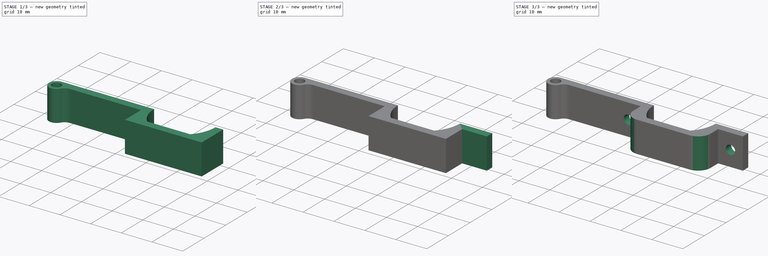
[diagram: build sequence overview — one tinted view per stage of 3, left to right]
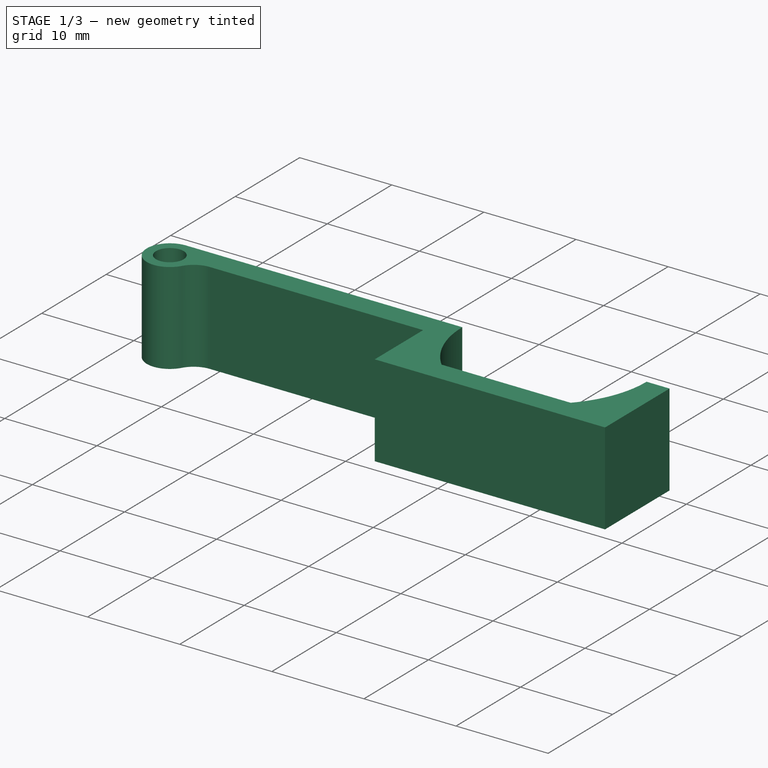
[diagram: stage 1 of 3 — iso view after this stage's code; geometry added in this stage tinted green]
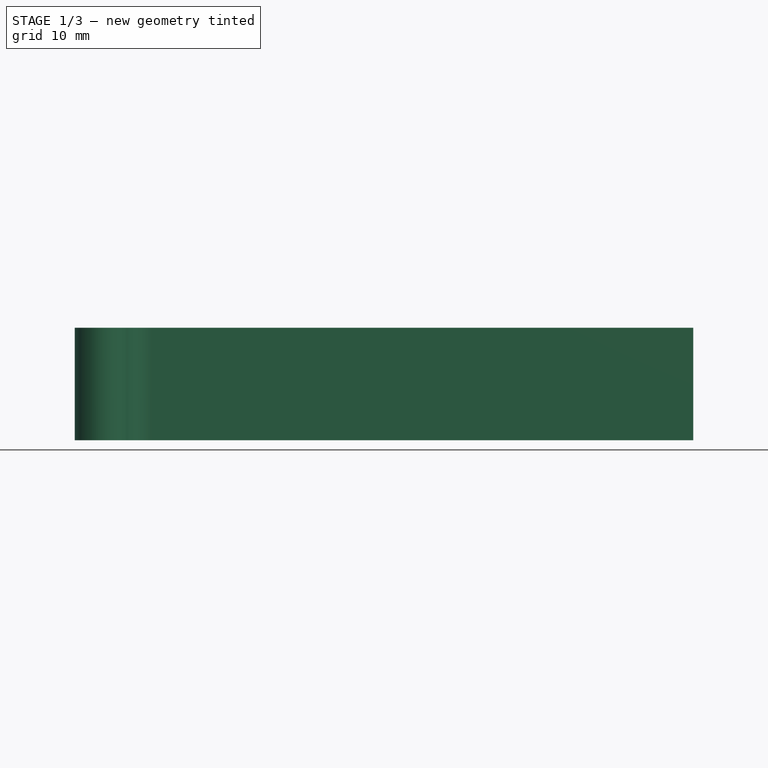
[diagram: stage 1 of 3 — front view after this stage's code; geometry added in this stage tinted green]
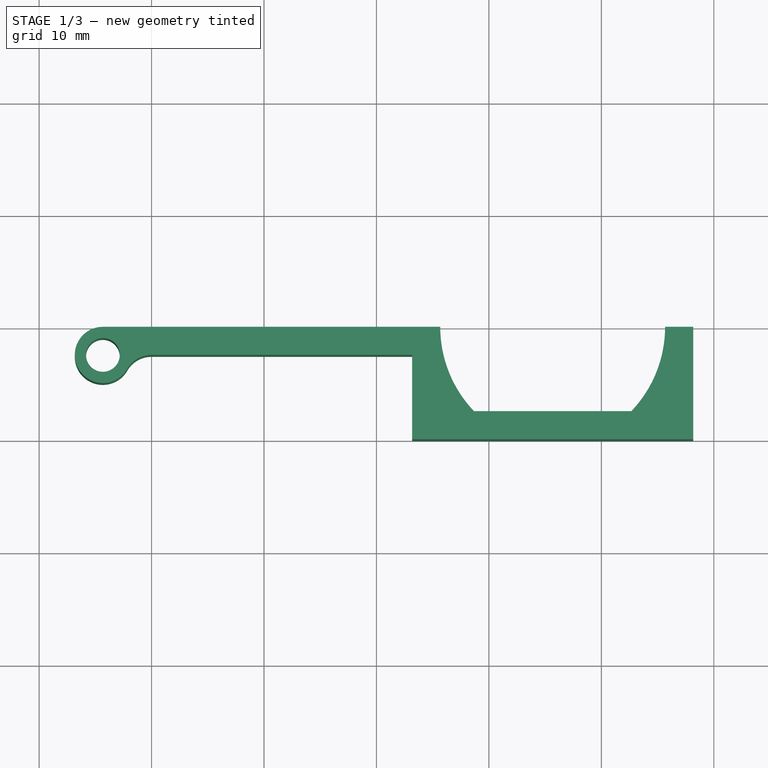
[diagram: stage 1 of 3 — top view after this stage's code; geometry added in this stage tinted green]
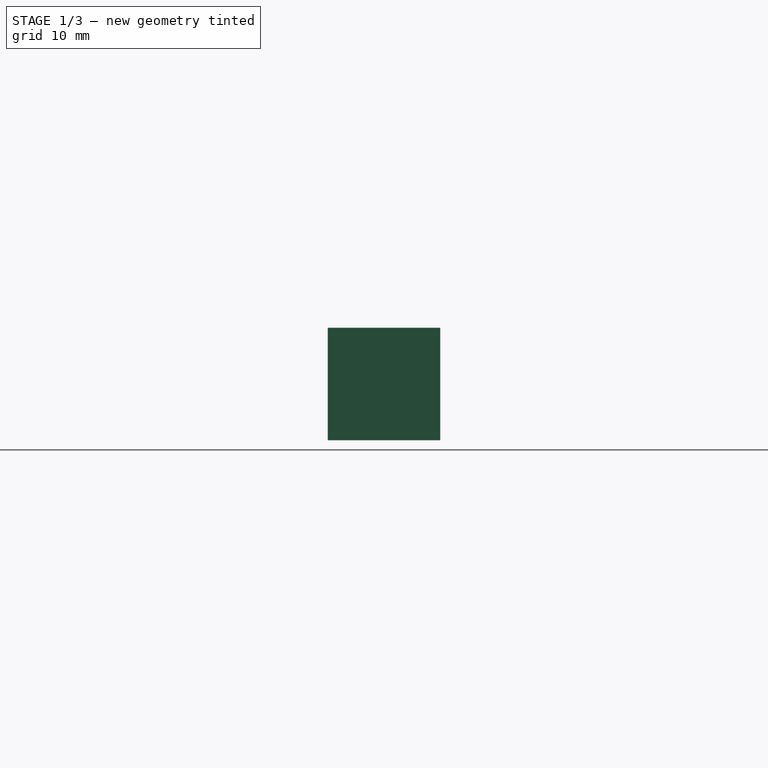
[diagram: stage 1 of 3 — right view after this stage's code; geometry added in this stage tinted green]
FCSTD DOCUMENT  (FreeCAD 1.0R39109 (Git))
Label: Motor-Befestigung-Schraubebefestigung-DerGerät
License: All rights reserved
LicenseURL: https://en.wikipedia.org/wiki/All_rights_reserved
objects: Sketcher::SketchObject×4, PartDesign::Pad×2, PartDesign::Pocket×2, PartDesign::Fillet×1, PartDesign::Body×1
note: 24 computed .brp shape members not serialized (recipe doc carries the construction recipe); baked Part::Feature solids carry a one-line shape summary decoded from their .brp

FEATURE [Sketcher::SketchObject] Sketch
  ArcFitTolerance = 1e-06
  AttachmentSupport = -> [XY_Plane]
  FullyConstrained = true
  MakeInternals = false
  MapMode = 5
  sketch-geometry (15):
    g0: ArcOfCircle CenterX=36.5449 CenterY=10 CenterZ=0 NormalX=0 NormalY=0 NormalZ=1 AngleXU=0 Radius=10.875 StartAngle=3.14159 EndAngle=3.90261
    g1: ArcOfCircle CenterX=34.7949 CenterY=10 CenterZ=0 NormalX=0 NormalY=0 NormalZ=1 AngleXU=0 Radius=10.875 StartAngle=5.52217 EndAngle=6.28319
    g2: LineSegment StartX=28.6699 StartY=2.5 StartZ=0 EndX=42.6699 EndY=2.5 EndZ=0
    g3: LineSegment [constr] StartX=28.6699 StartY=2.5 StartZ=0 EndX=28.6699 EndY=12.5 EndZ=0
    g4: LineSegment [constr] StartX=42.6699 StartY=2.5 StartZ=0 EndX=42.6699 EndY=12.5 EndZ=0
    g5: LineSegment [constr] StartX=25.6699 StartY=10 StartZ=0 EndX=45.6699 EndY=10 EndZ=0
    g6: LineSegment StartX=25.6699 StartY=10 StartZ=0 EndX=23.1699 EndY=10 EndZ=0
    g7: LineSegment StartX=23.1699 StartY=4e-16 StartZ=0 EndX=48.1699 EndY=4e-16 EndZ=0
    g8: LineSegment StartX=48.1699 StartY=10 StartZ=0 EndX=45.6699 EndY=10 EndZ=0
    g9: LineSegment StartX=23.1699 StartY=4e-16 StartZ=0 EndX=23.1699 EndY=7.5 EndZ=0
    g10: LineSegment StartX=23.1699 StartY=7.5 StartZ=0 EndX=0 EndY=7.5 EndZ=0
    g11: ArcOfCircle CenterX=0 CenterY=5 CenterZ=0 NormalX=0 NormalY=0 NormalZ=1 AngleXU=0 Radius=2.5 StartAngle=1.5708 EndAngle=2.61799
    g12: ArcOfCircle CenterX=-4.33013 CenterY=7.5 CenterZ=0 NormalX=0 NormalY=0 NormalZ=1 AngleXU=0 Radius=2.5 StartAngle=1.5708 EndAngle=5.75959
    g13: LineSegment StartX=-4.33013 StartY=10 StartZ=0 EndX=23.1699 EndY=10 EndZ=0
    g14: LineSegment StartX=48.1699 StartY=4e-16 StartZ=0 EndX=48.1699 EndY=10 EndZ=0
  constraints (45):
    c: Coincident(g2,g0)
    c: Coincident(g2,g1)
    c: Horizontal(g2)
    c: Distance(g3) = 10
    c: Vertical(g3)
    c: Coincident(g3,g0)
    c: Distance(g4) = 10
    c: Vertical(g4)
    c: Coincident(g4,g1)
    c: Distance(g1,g4) = -3
    c: Distance(g0,g3) = -3
    c: Distance(g0,g2) = 7.5
    c: Distance(g1,g2) = 7.5
    c: Coincident(g5,g0)
    c: Coincident(g5,g1)
    c: PointOnObject(g1,g5)
    c: PointOnObject(g0,g5)
    c: Coincident(g0,g6)
    c: Horizontal(g7)
    c: Coincident(g8,g1)
    c: Horizontal(g8)
    c: Equal(g8,g6)
    c: Horizontal(g6)
    c: Distance(g7,g2) = 2.5
    c: DistanceX(g8,g8) = 2.5
    c: DistanceX(g2,g2) = 14
    c: Coincident(g9,g7)
    c: Vertical(g9)
    c: Vertical(g9,g6)
    c: Coincident(g9,g10)
    c: Horizontal(g10)
    c: Tangent(g10,g11) = -1.5708
    c: Tangent(g11,g12) = 1.5708
    c: Coincident(g13,g6)
    c: Horizontal(g13)
    c: Equal(g11,g12)
    c: Tangent(g12,g13) = 1.5708
    c: Radius(g12) = 2.5
    c: Vertical(g11,g-1)
    c: Distance(g-1,g11) = 5
    c: DistanceX(g12,g6) = 27.5
    c: Distance(g13,g10) = 2.5
    c: Coincident(g14,g7)
    c: Coincident(g14,g8)
    c: Vertical(g14)
FEATURE [PartDesign::Pad] Pad
  Direction = (0,0,1)
  Length = 10
  Length2 = 10
  Profile = -> Sketch
  ReferenceAxis = -> Sketch [N_Axis]
  Refine = true
  Suppressed = false
  Type = 0
FEATURE [Sketcher::SketchObject] Sketch002
  ArcFitTolerance = 1e-06
  FullyConstrained = true
  MakeInternals = false
  MapMode = 5
  Placement = pos=(0,0,10) rot=(0,0,1;0rad)
  sketch-geometry (1):
    g0: Circle CenterX=-4.33013 CenterY=7.5 CenterZ=0 NormalX=0 NormalY=0 NormalZ=1 AngleXU=0 Radius=1.5
  constraints (2):
    c: Diameter(g0) = 3
    c: Coincident(g0,g-3)
FEATURE [PartDesign::Pocket] Pocket
  BaseFeature = -> Pad
  Direction = (0,0,-1)
  Length = 5
  Length2 = 5
  Profile = -> Sketch002
  ReferenceAxis = -> Sketch002 [N_Axis]
  Refine = true
  Suppressed = false
  Type = 1
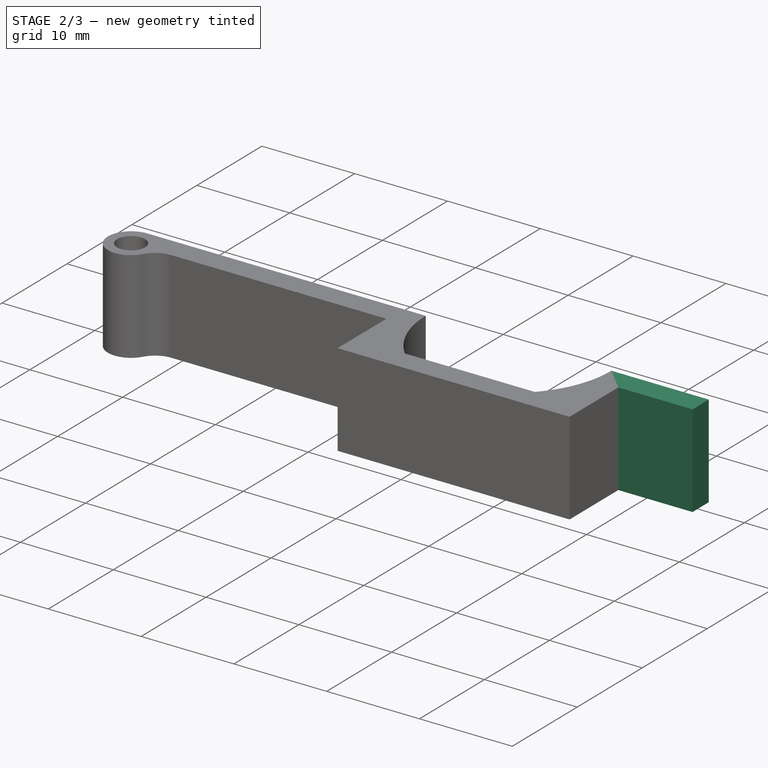
[diagram: stage 2 of 3 — iso view after this stage's code; geometry added in this stage tinted green]
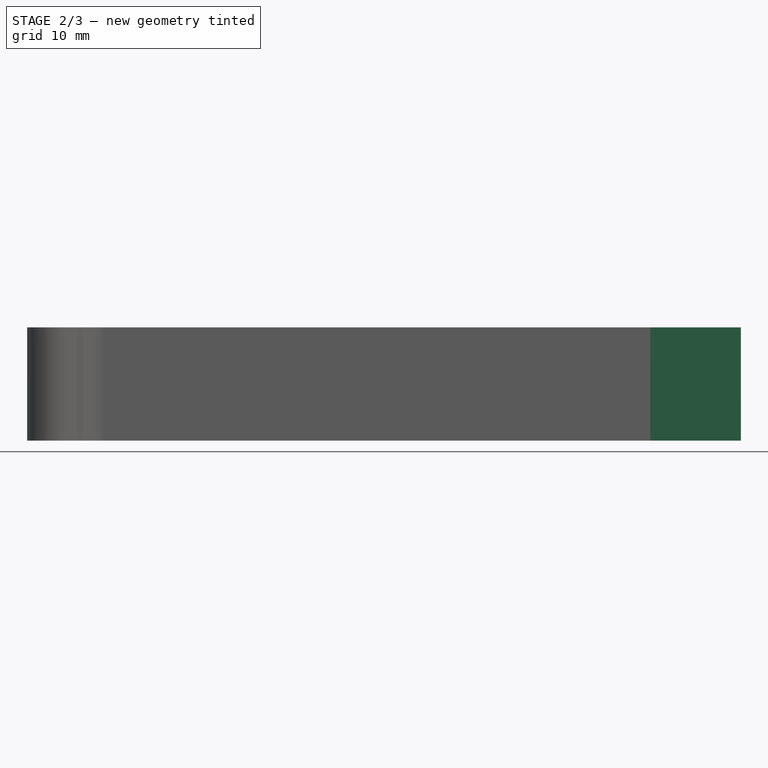
[diagram: stage 2 of 3 — front view after this stage's code; geometry added in this stage tinted green]
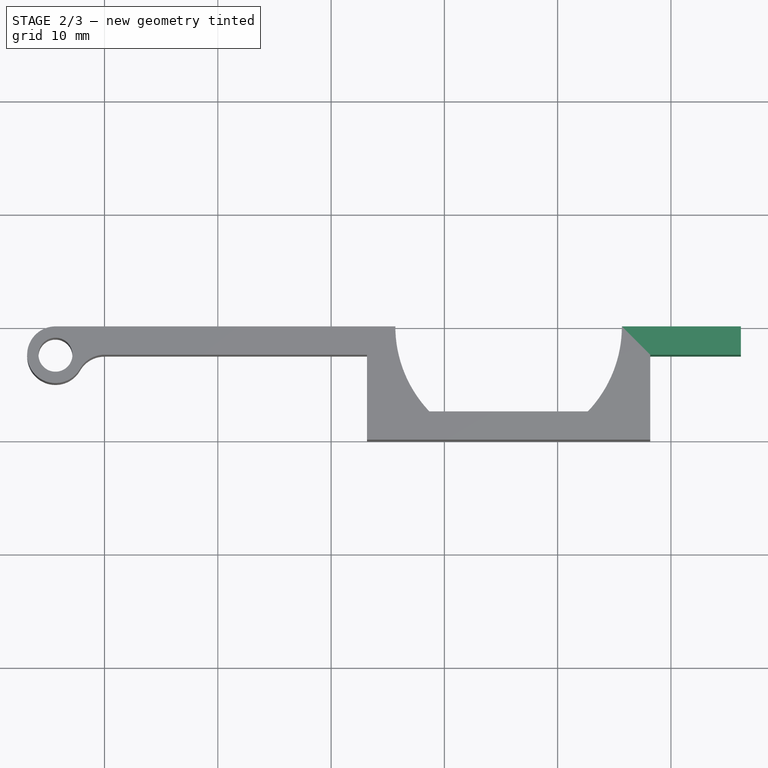
[diagram: stage 2 of 3 — top view after this stage's code; geometry added in this stage tinted green]
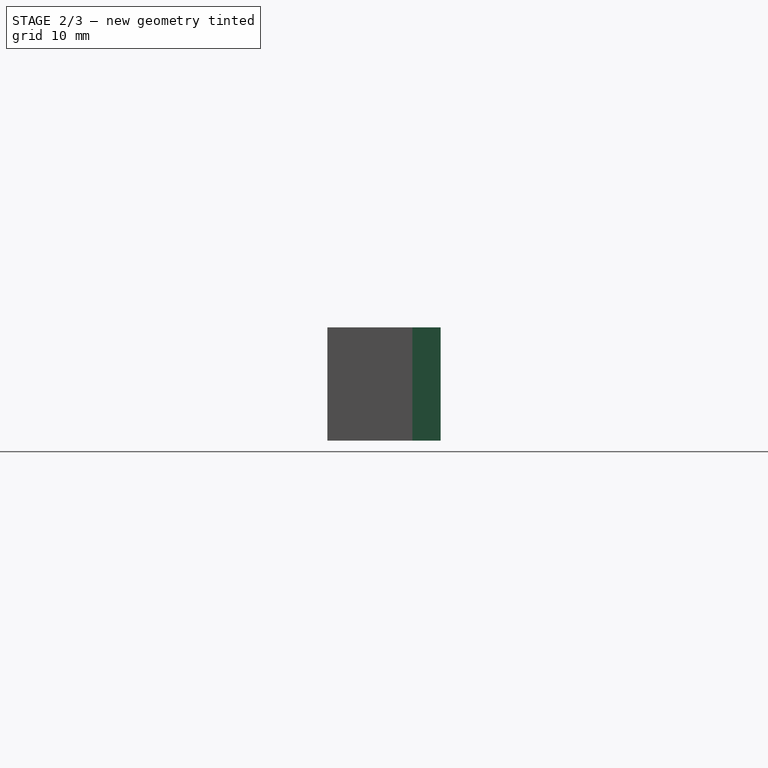
[diagram: stage 2 of 3 — right view after this stage's code; geometry added in this stage tinted green]
FEATURE [Sketcher::SketchObject] Sketch003
  ArcFitTolerance = 1e-06
  AttachmentSupport = -> [Pocket]
  ExternalGeometry = -> [Pocket]
  FullyConstrained = true
  MakeInternals = false
  MapMode = 5
  Placement = pos=(48.1699,0,0) rot=(0.57735,0.57735,0.57735;2.0944rad)
  sketch-geometry (4):
    g0: LineSegment StartX=10 StartY=0 StartZ=0 EndX=10 EndY=10 EndZ=0
    g1: LineSegment StartX=10 StartY=10 StartZ=0 EndX=7.5 EndY=10 EndZ=0
    g2: LineSegment StartX=7.5 StartY=10 StartZ=0 EndX=7.5 EndY=0 EndZ=0
    g3: LineSegment StartX=7.5 StartY=0 StartZ=0 EndX=10 EndY=0 EndZ=0
  constraints (10):
    c: Coincident(g0,g1)
    c: Coincident(g1,g2)
    c: Coincident(g2,g3)
    c: Coincident(g3,g0)
    c: Vertical(g2)
    c: Horizontal(g1)
    c: Horizontal(g3)
    c: Distance(g0,g2) = 2.5
    c: Coincident(g0,g-3)
    c: Coincident(g0,g-3)
FEATURE [PartDesign::Pad] Pad001
  BaseFeature = -> Pocket
  Direction = (1,0,0)
  Length = 8
  Length2 = 10
  Profile = -> Sketch003
  ReferenceAxis = -> Sketch003 [N_Axis]
  Refine = true
  Suppressed = false
  Type = 0
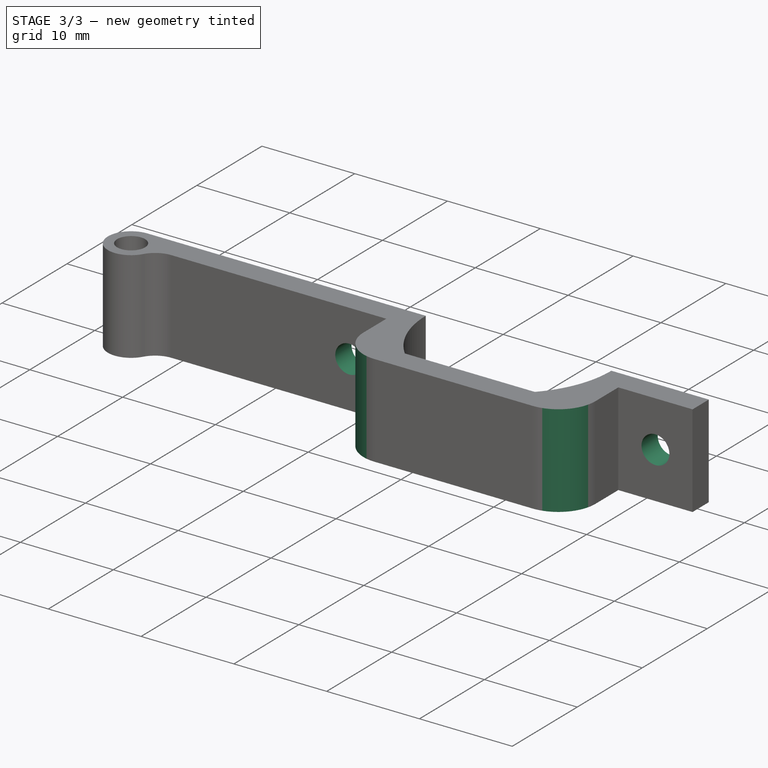
[diagram: stage 3 of 3 — iso view after this stage's code; geometry added in this stage tinted green]
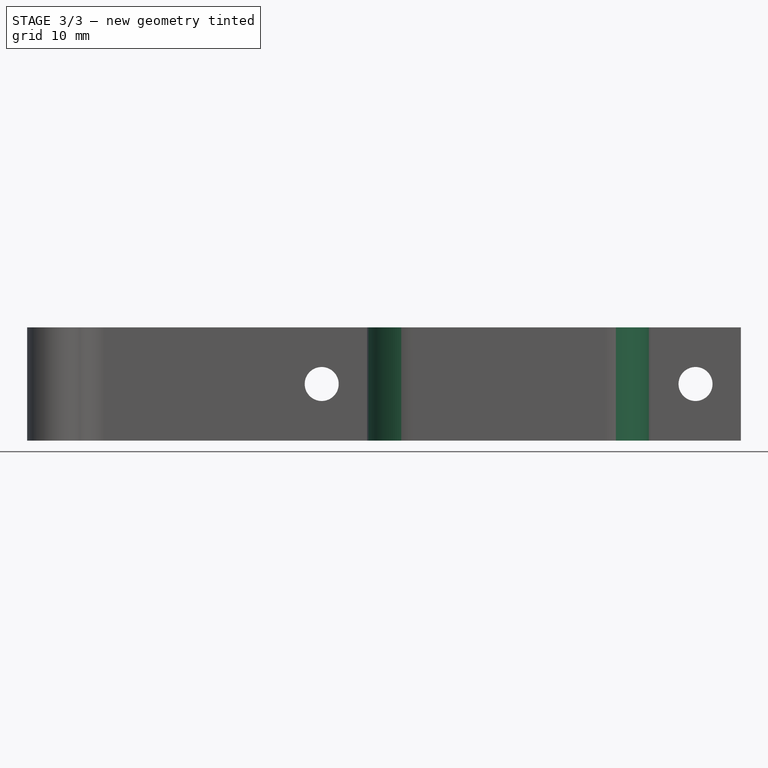
[diagram: stage 3 of 3 — front view after this stage's code; geometry added in this stage tinted green]
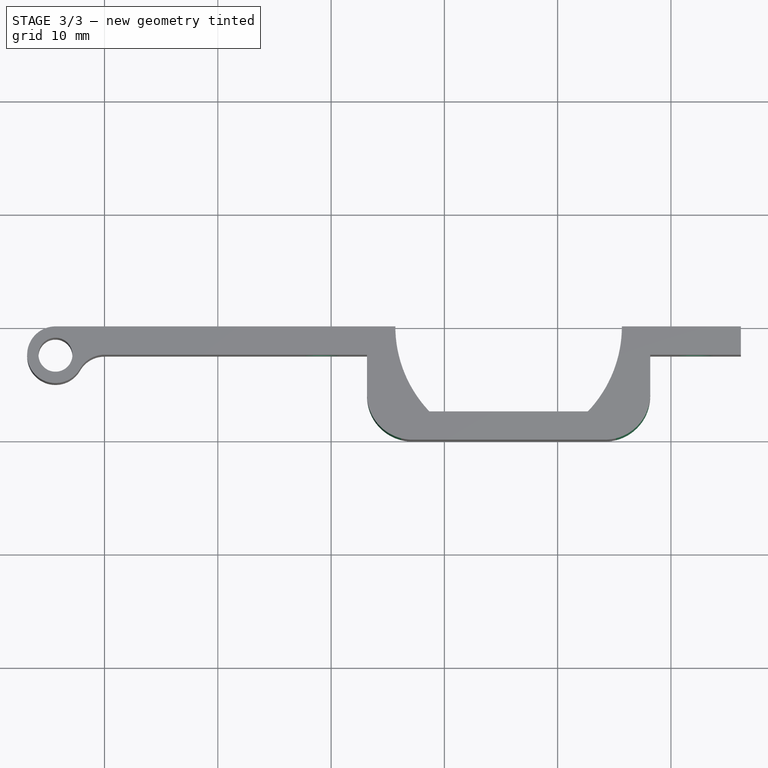
[diagram: stage 3 of 3 — top view after this stage's code; geometry added in this stage tinted green]
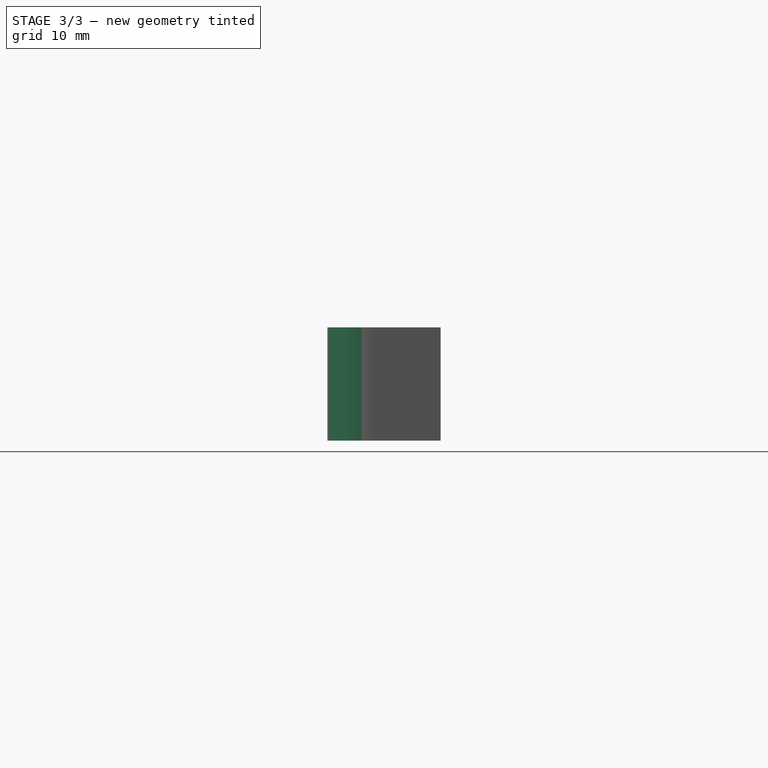
[diagram: stage 3 of 3 — right view after this stage's code; geometry added in this stage tinted green]
FEATURE [Sketcher::SketchObject] Sketch004
  ArcFitTolerance = 1e-06
  AttachmentSupport = -> [Pad001]
  ExternalGeometry = -> [Pad001]
  FullyConstrained = true
  MakeInternals = false
  MapMode = 5
  Placement = pos=(0,7.5,0) rot=(1,0,0;1.5708rad)
  sketch-geometry (4):
    g0: LineSegment [constr] StartX=48.1699 StartY=-1.7e-15 StartZ=0 EndX=56.1699 EndY=10 EndZ=0
    g1: LineSegment [constr] StartX=23.1699 StartY=10 StartZ=0 EndX=15.1699 EndY=0 EndZ=0
    g2: Circle CenterX=52.1699 CenterY=5 CenterZ=0 NormalX=0 NormalY=0 NormalZ=1 AngleXU=0 Radius=1.5
    g3: Circle CenterX=19.1699 CenterY=5 CenterZ=0 NormalX=0 NormalY=0 NormalZ=1 AngleXU=0 Radius=1.5
  constraints (9):
    c: Coincident(g0,g-4)
    c: Coincident(g0,g-3)
    c: Coincident(g1,g-5)
    c: PointOnObject(g1,g-6)
    c: Equal(g1,g0)
    c: Diameter(g2) = 3
    c: Symmetric(g0,g0,g2)
    c: Diameter(g3) = 3
    c: Symmetric(g1,g1,g3)
FEATURE [PartDesign::Pocket] Pocket001
  BaseFeature = -> Pad001
  Direction = (0,1,-2e-16)
  Length = 5
  Length2 = 5
  Profile = -> Sketch004
  ReferenceAxis = -> Sketch004 [N_Axis]
  Refine = true
  Suppressed = false
  Type = 1
FEATURE [PartDesign::Fillet] Fillet
  Base = -> Pocket001 [Edge43,Edge44]
  BaseFeature = -> Pocket001
  Radius = 4
  Refine = true
  SupportTransform = false
  Suppressed = false
  UseAllEdges = false
FEATURE [PartDesign::Body] Body  label="Körper"
  AllowCompound = false
  Group = -> [Sketch,Pad,Sketch002,Pocket,Sketch003,Pad001,Sketch004,Pocket001,Fillet]
  Origin = -> Origin
  Tip = -> Fillet
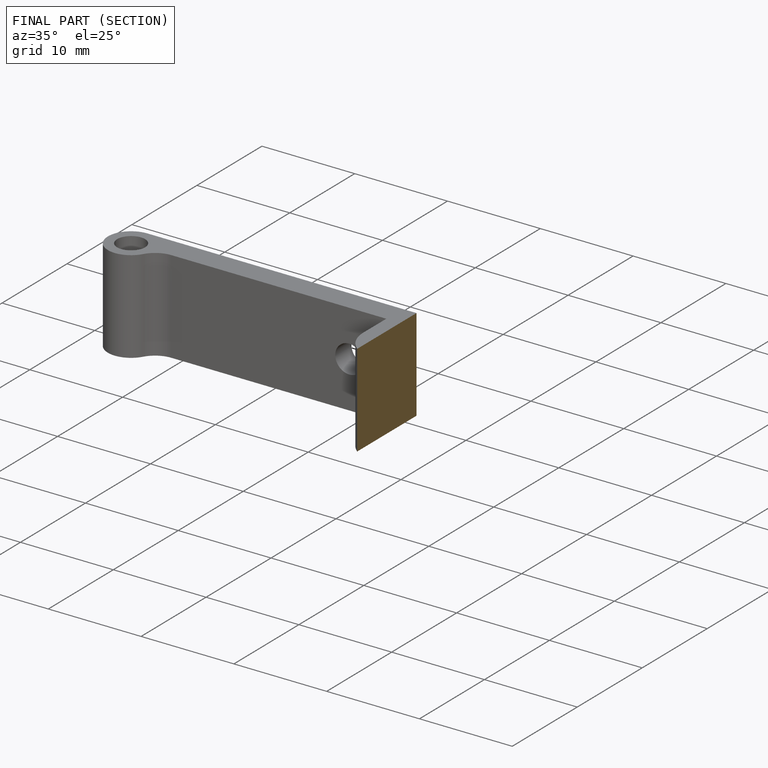
[diagram: finished part — half-section view (interior)]
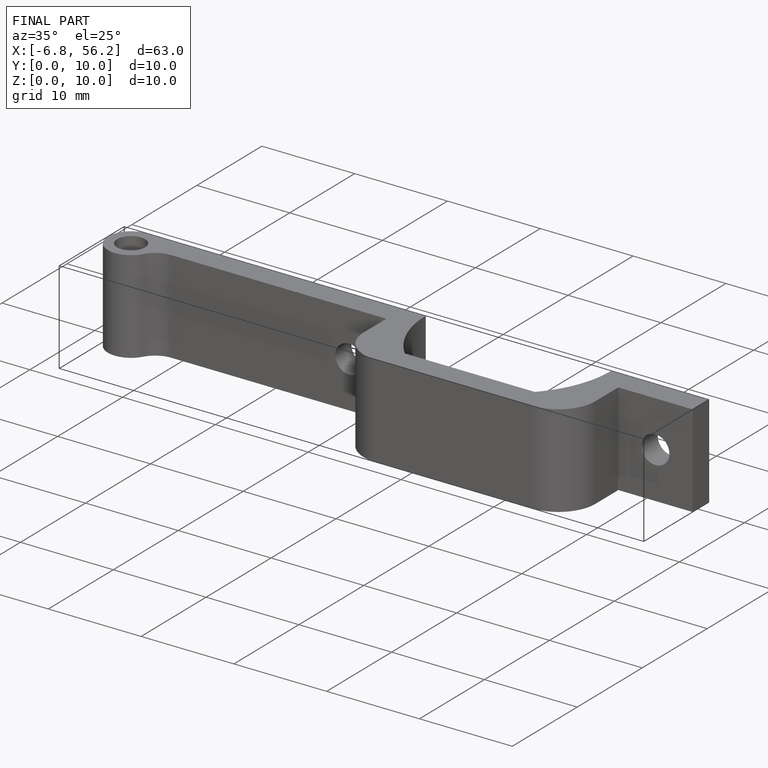
[diagram: finished part — iso view with bounding-box wireframe]
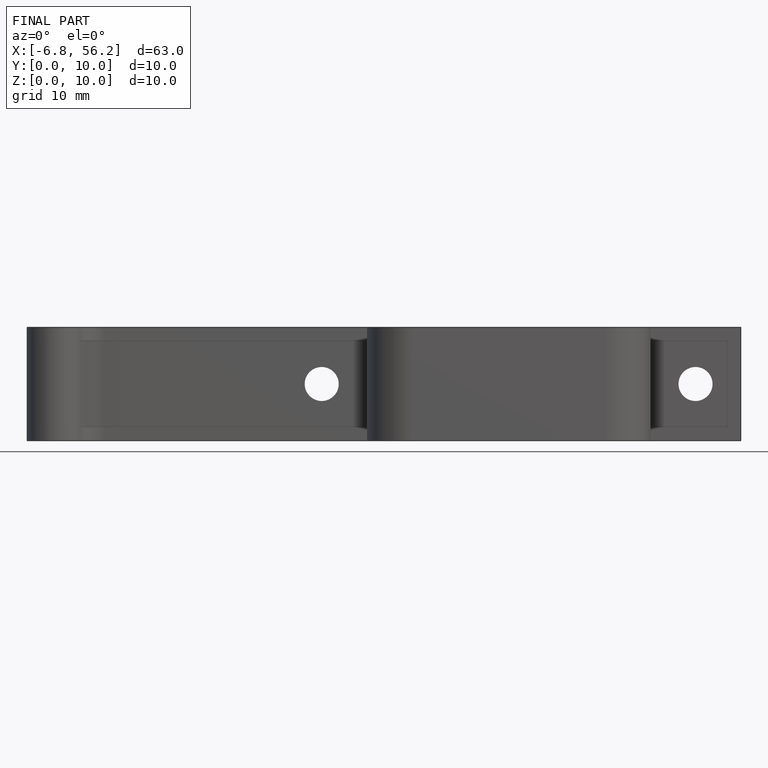
[diagram: finished part — front view with bounding-box wireframe]
